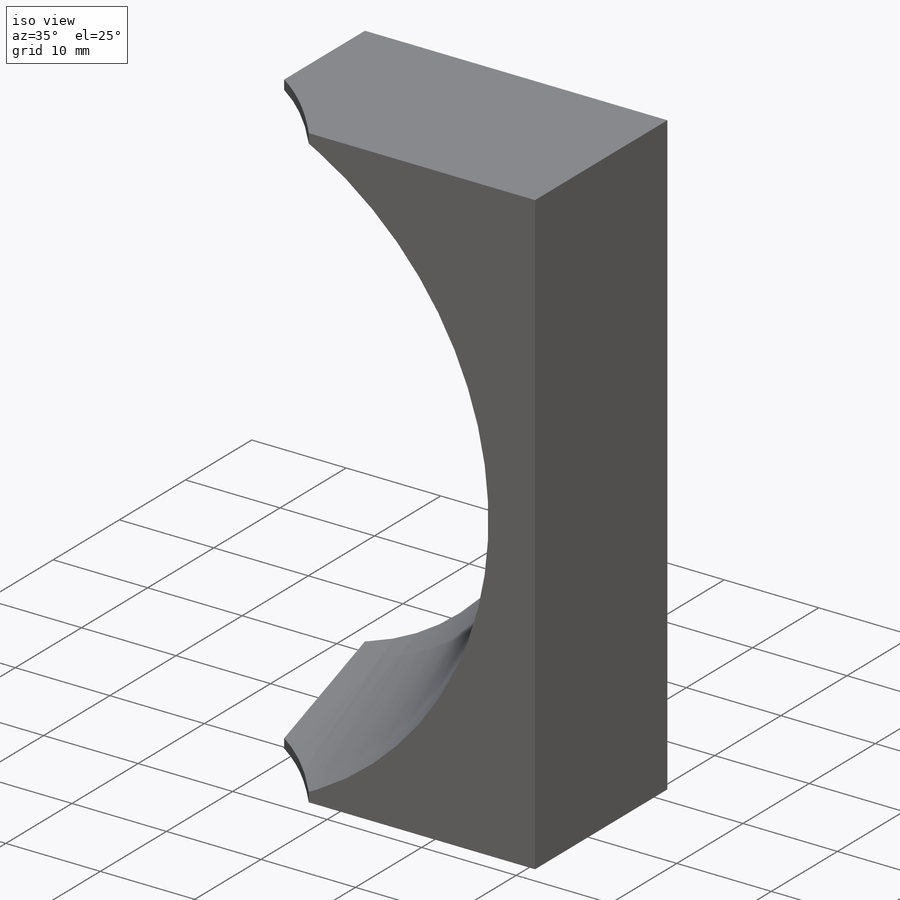
[diagram: iso view]
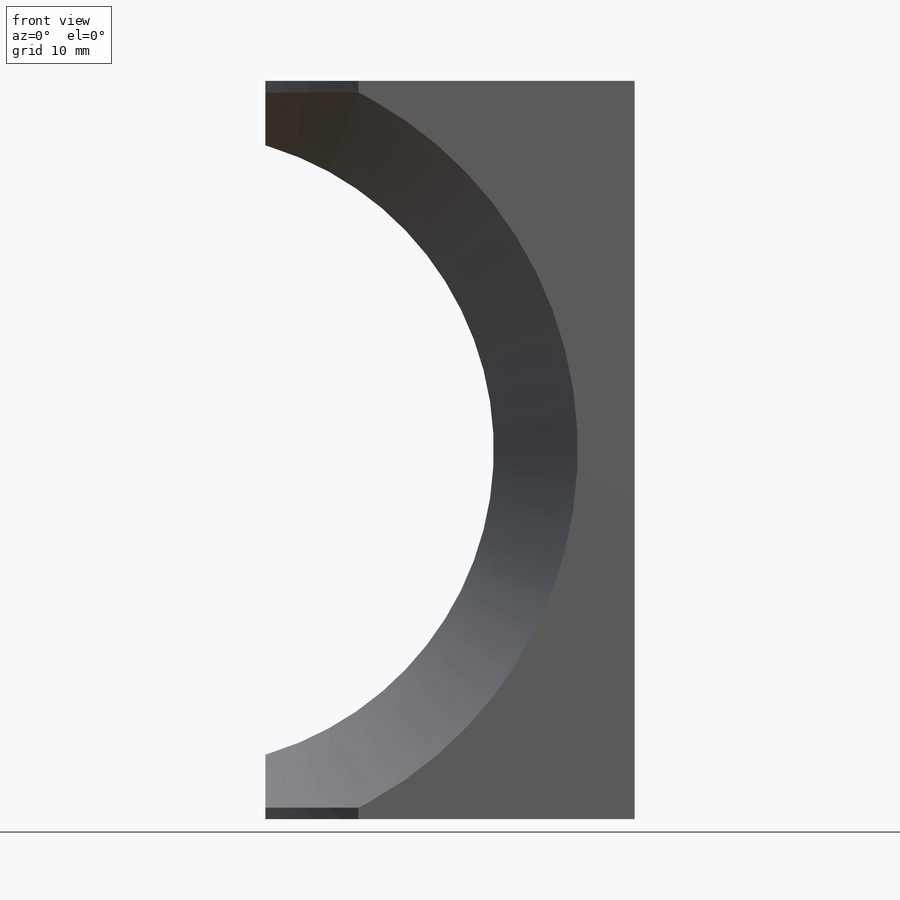
[diagram: front view]
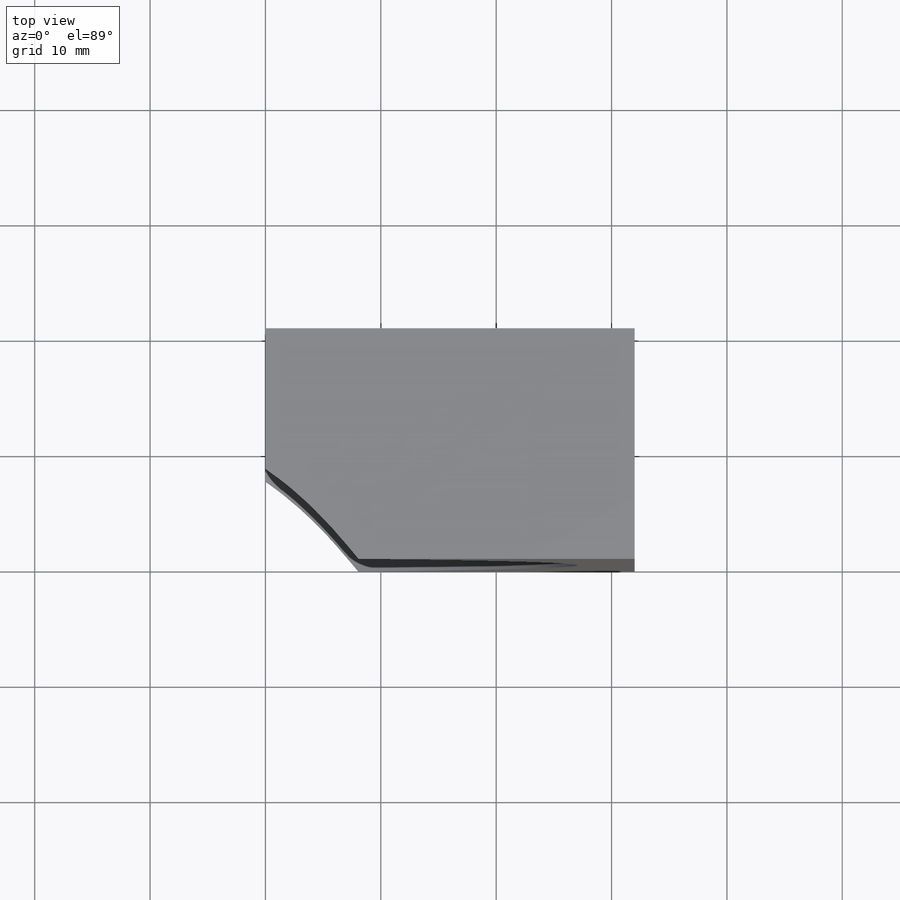
[diagram: top view]
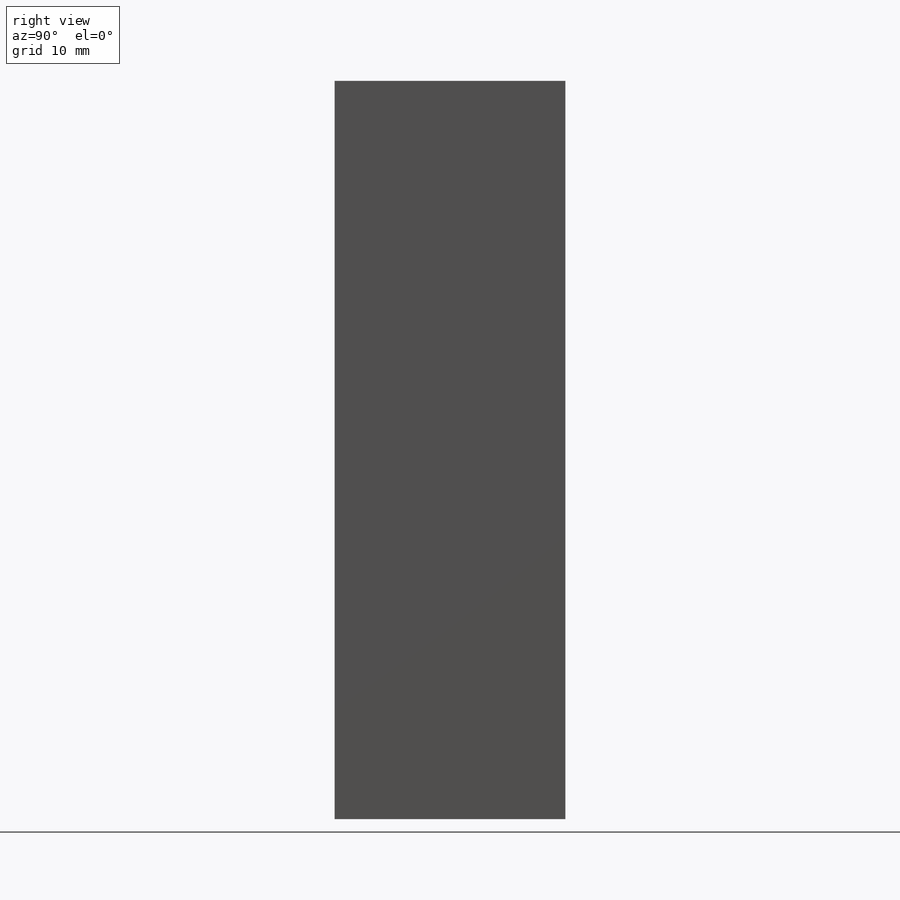
[diagram: right view]
SOLIDWORKS PART (.sldprt)
format: sldprt  version: not decoded by parser v0  size: 185,344 bytes
history: native  units: mm
features: sketch x4, extrude x4, material x1, chamfer x1 (+11 scaffold rows collapsed)
feature tree (21):
  scaffold x11  (default folders/planes/origin — collapsed)
  material  "Material <not specified>"
  sketch  "Sketch1"  dims[c1.D3=27.5mm c1.D2=31.0mm c2.D3=31.0mm c2.D4=64.0mm c2.D1=0.0mm]
  extrude  "Boss-Extrude1"  Depth=20mm
  sketch  "Sketch4"  dims[c1.D1=~64.387054mm c1.D2=~6.42786mm c2.D1=7.0mm]
  extrude  "Boss-Extrude3"  [1 undecoded]
  chamfer  "Chamfer1"  Distance=20mm Angle=20deg
  sketch  "Sketch3"  dims[D1=0.0mm]
  extrude  "Boss-Extrude2"  Depth=1mm
  sketch  "Sketch5"  dims[D1=0.0mm]
  extrude  "Boss-Extrude4"  Depth=1mm
decode coverage: 8 of 9 modeling features carry decoded parameters
note: ~ marks probable driven/reference dimensions
note: 1 parameter value undecoded
note: suppression state not decoded; provenance and decode notes live in map.json
